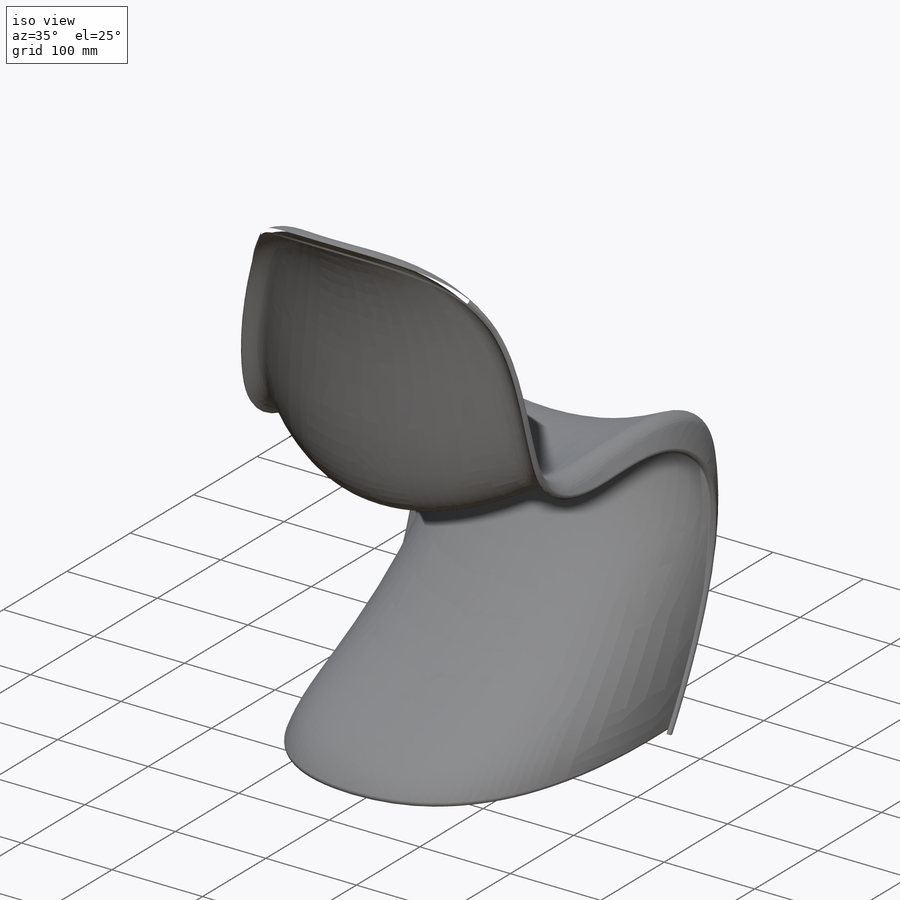
[diagram: iso view]
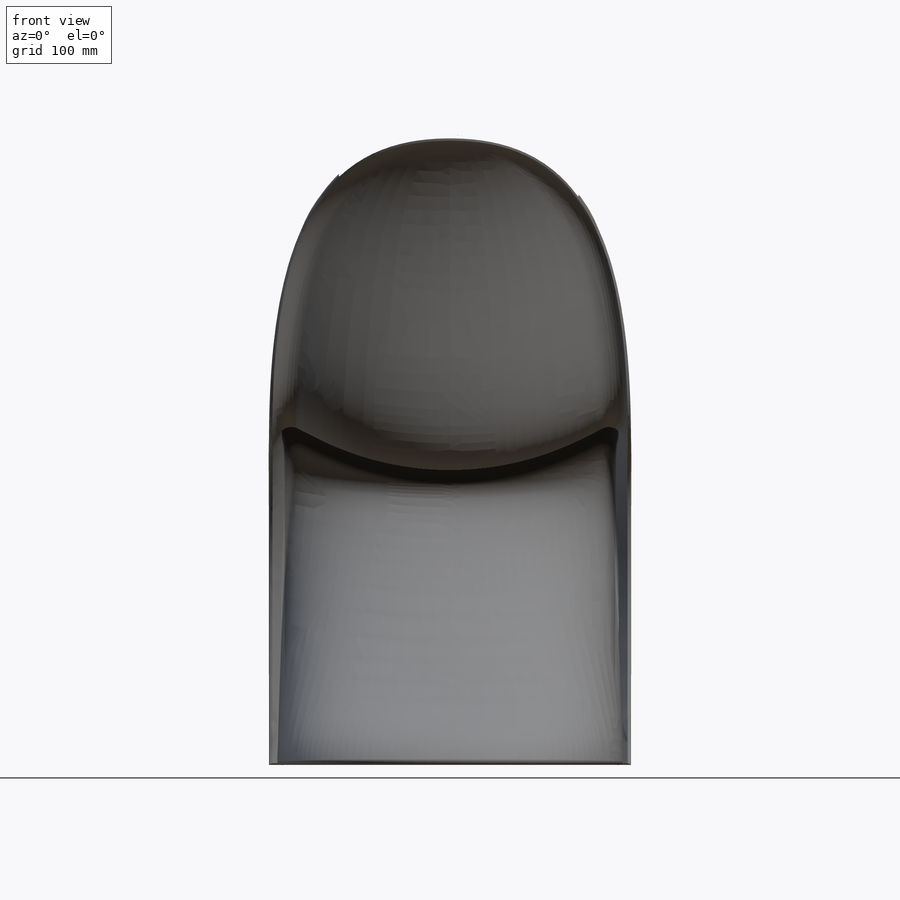
[diagram: front view]
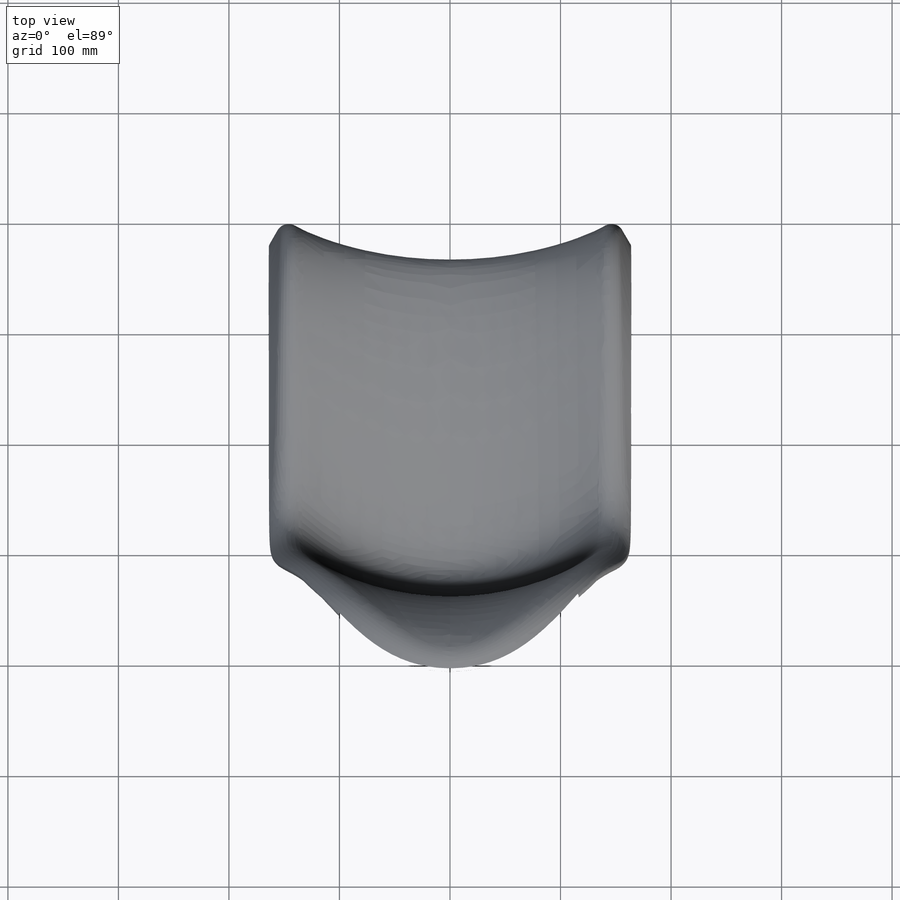
[diagram: top view]
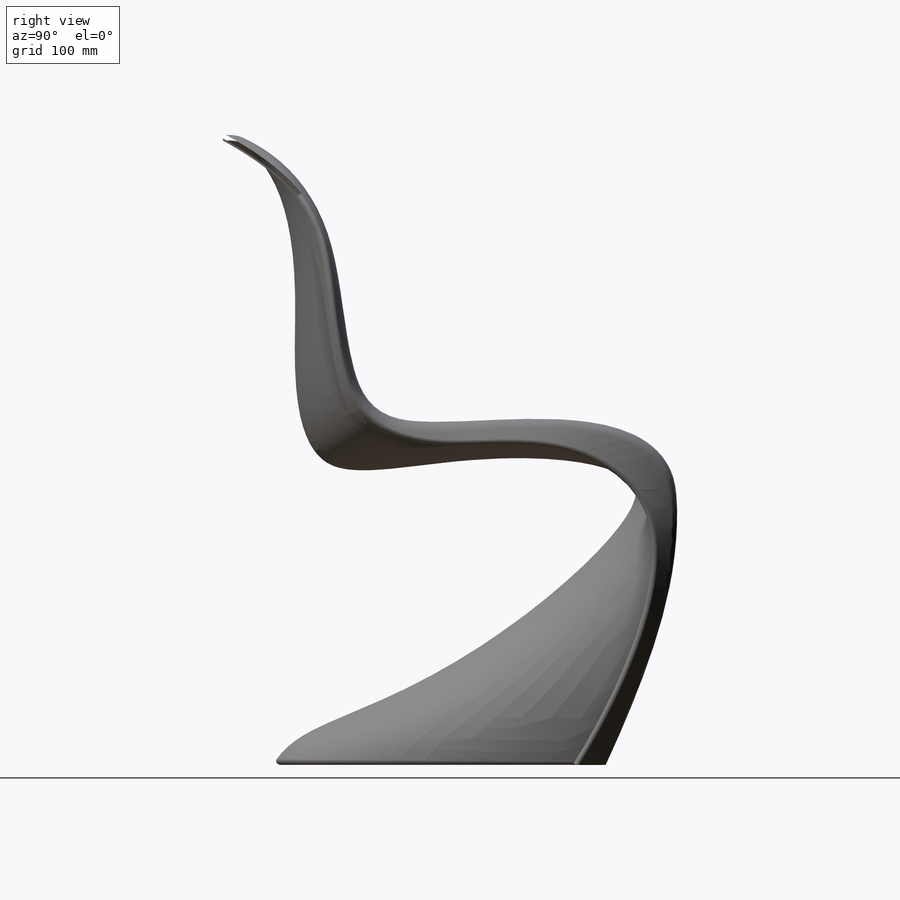
[diagram: right view]
SOLIDWORKS PART (.sldprt)
format: sldprt  version: not decoded by parser v0  size: 1,826,816 bytes
history: native  units: mm
features: sketch x10, material x1, plane x1, mirror x1, fillet x1 (+15 scaffold rows collapsed)
feature tree (29):
  scaffold x15  (default folders/planes/origin — collapsed)
  material  "Material <not specified>"
  sketch  "Sketch1"  dims[D1=570.0mm]
  sketch  "Sketch2"
  plane  "Plane1"  Offset=150mm
  sketch  "Sketch3"
  sketch  "Sketch4"  dims[c1.D2=450.0mm c1.D3=500.0mm c2.D2=600.0mm c2.D3=320.0mm c2.D1=280.0mm c2.D4=570.0mm c3.D1=280.0mm c3.D2=150.0mm c4.D1=280.0mm]
  sketch  "Sketch5"
  sketch  "3DSketch1"
  sketch  "Sketch6"  dims[D1=15.0mm]
  sketch  "Sketch7"  dims[c1.D3=334.0mm c1.D4=640.0mm c2.D3=600.0mm c2.D4=350.0mm c2.D1=15.0mm c2.D2=280.0mm c3.D1=165.0mm c3.D2=280.0mm]
  sketch  "Sketch8"
  sketch  "3DSketch2"  dims[D0=24.9mm D1=0.0mm]
  mirror  "Mirror1"
  fillet  "Fillet1"  Radius=3mm
decode coverage: 6 of 12 modeling features carry decoded parameters
note: suppression state not decoded; provenance and decode notes live in map.json
